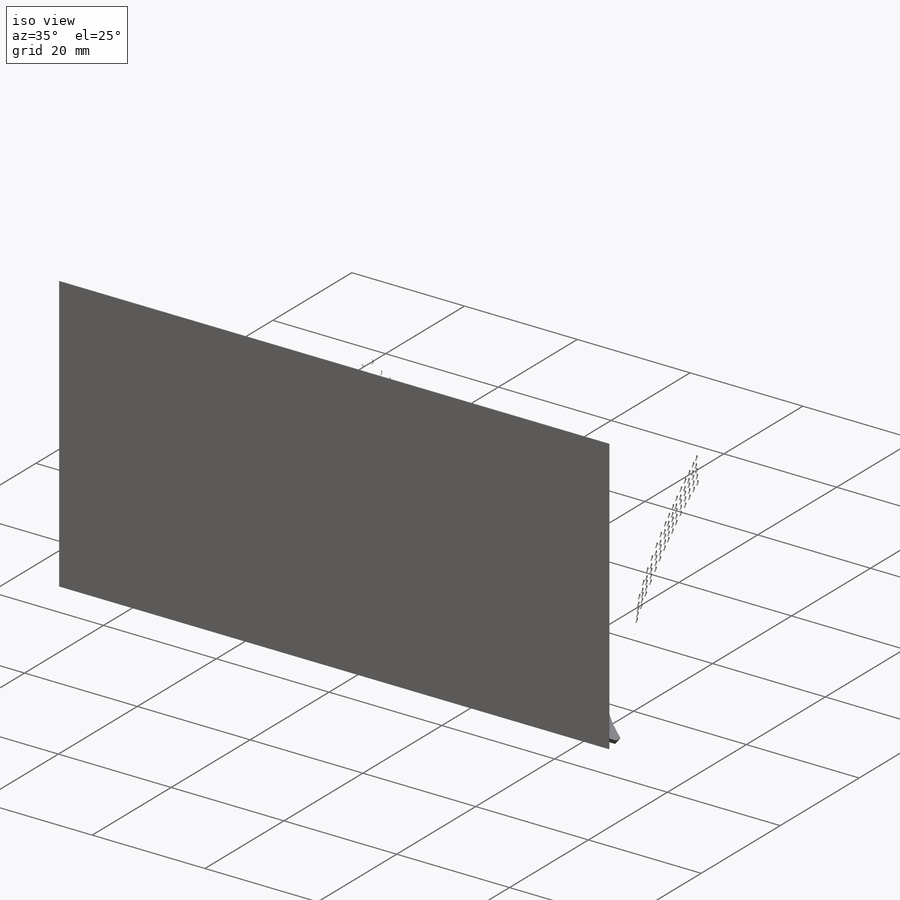
[diagram: iso view]
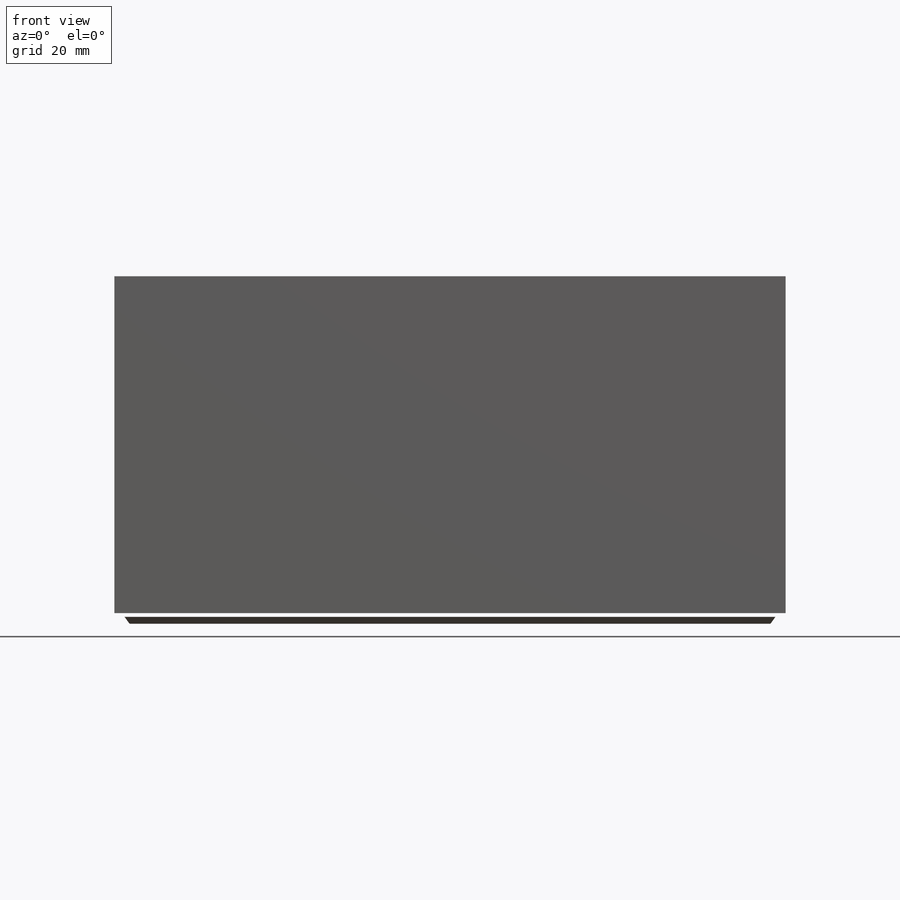
[diagram: front view]
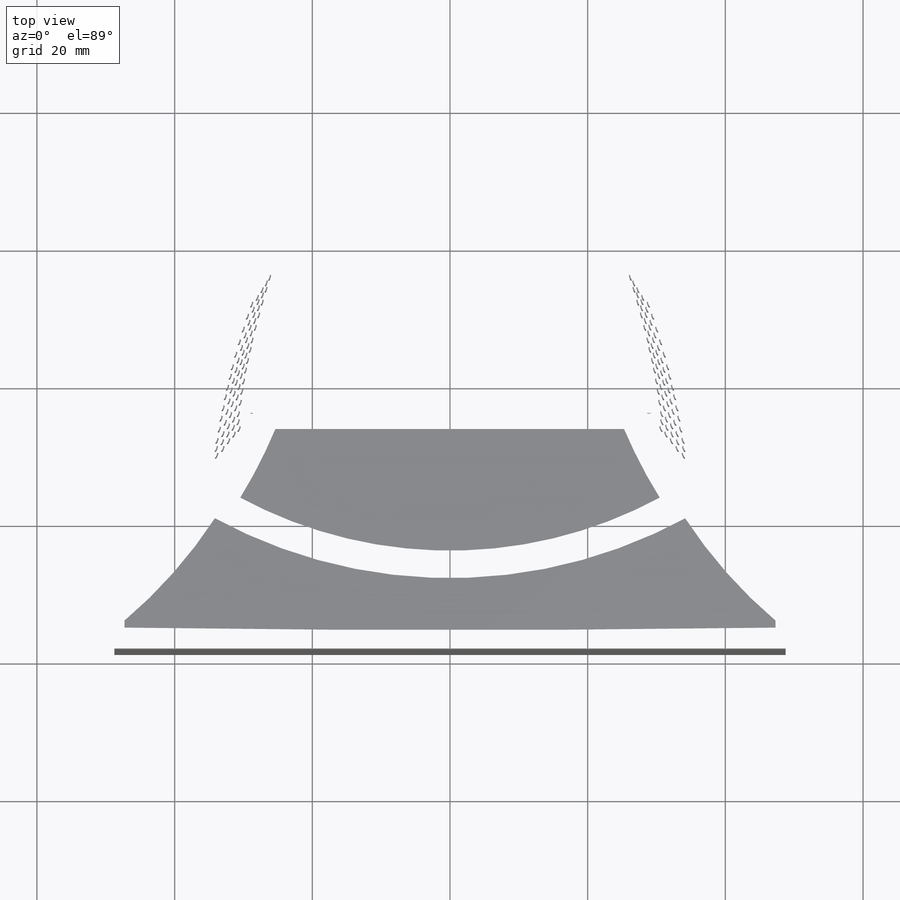
[diagram: top view]
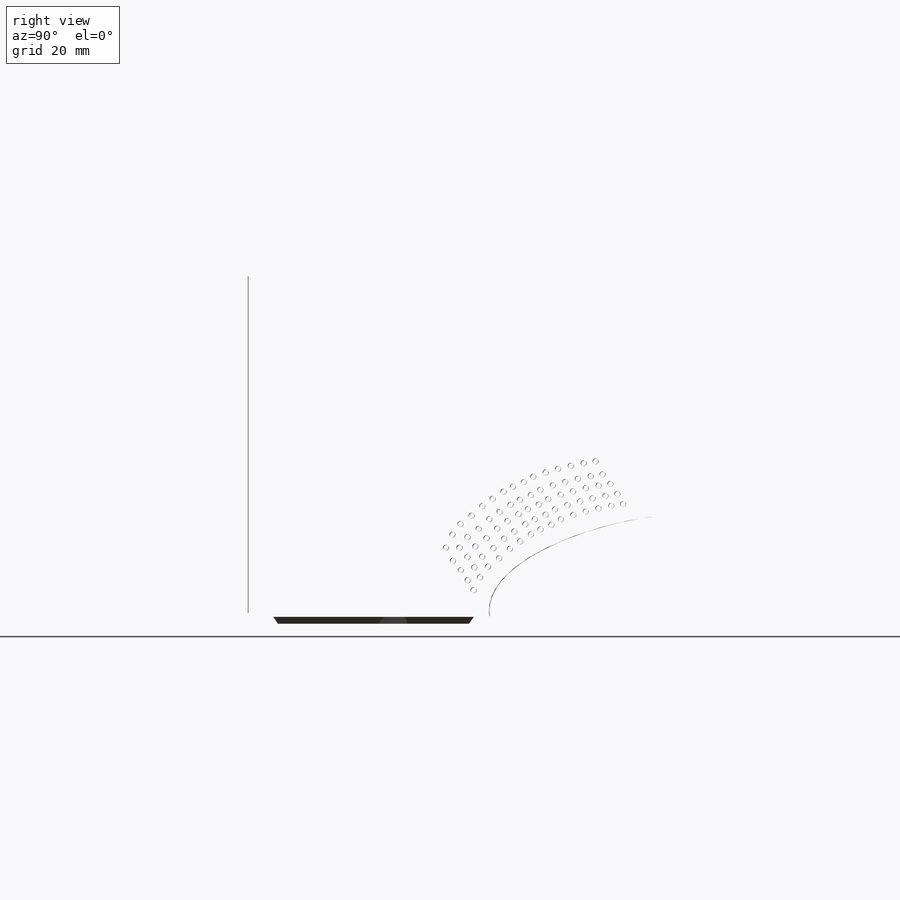
[diagram: right view]
SOLIDWORKS PART (.sldprt)
format: sldprt  version: not decoded by parser v0  size: 2,774,528 bytes
history: native  units: mm
features: sketch x16, plane x3, mirror x2, surface_op x2, extrude x2, material x1 (+13 scaffold rows collapsed)
feature tree (39):
  scaffold x13  (default folders/planes/origin — collapsed)
  material  "Material <not specified>"
  sketch  "Sketch1"  dims[c1.D1=50.0mm c2.D1=30.0mm c2.D2=3.0deg c3.D1=50.0mm c3.D2=3.0deg c4.D1=30.0mm c4.D2=3.0deg]
  sketch  "Sketch2"
  sketch  "Sketch3"  dims[D2=5.0mm D1=0.0mm]
  sketch  "Sketch4"
  sketch  "Sketch5"
  mirror  "Mirror1"
  mirror  "Mirror3"
  plane  "Plane1"
  sketch  "Sketch8"  dims[D1=0.0mm]
  surface_op  "Surface-Extrude1"
  sketch  "3DSketch1"  dims[D1=0.1mm]
  sketch  "Sketch11"  dims[c1.D1=70.0mm c1.D2=200.0mm c2.D1=2.0mm c2.D2=45.0deg]
  sketch  "Sketch12"  dims[c1.D1=0.0mm c1.D2=5.0mm c2.D1=6.0mm c2.D2=2.0mm c2.D3=2.0mm c2.D4=2.0mm c2.D5=2.0mm]
  extrude  "Boss-Extrude1"  Depth=1mm
  sketch  "Sketch13"
  sketch  "Surface-Extrude3"  dims[c1.D1=2.0mm c1.D3=27.0deg c2.D1=10.0mm c2.D2=6.0deg]
  sketch  "Sketch14"
  sketch  "Sketch15"
  plane  "Plane2"  Offset=2mm
  sketch  "Sketch16"  dims[D1=0.0mm]
  sketch  "Surface-Extrude4"
  surface_op  "Surface-Knit5"
  plane  "Plane3"  Offset=79.419843mm
  sketch  "Sketch18"
  extrude  "Thicken2"  Depth=0.2mm
decode coverage: 10 of 22 modeling features carry decoded parameters
note: suppression state not decoded; provenance and decode notes live in map.json
